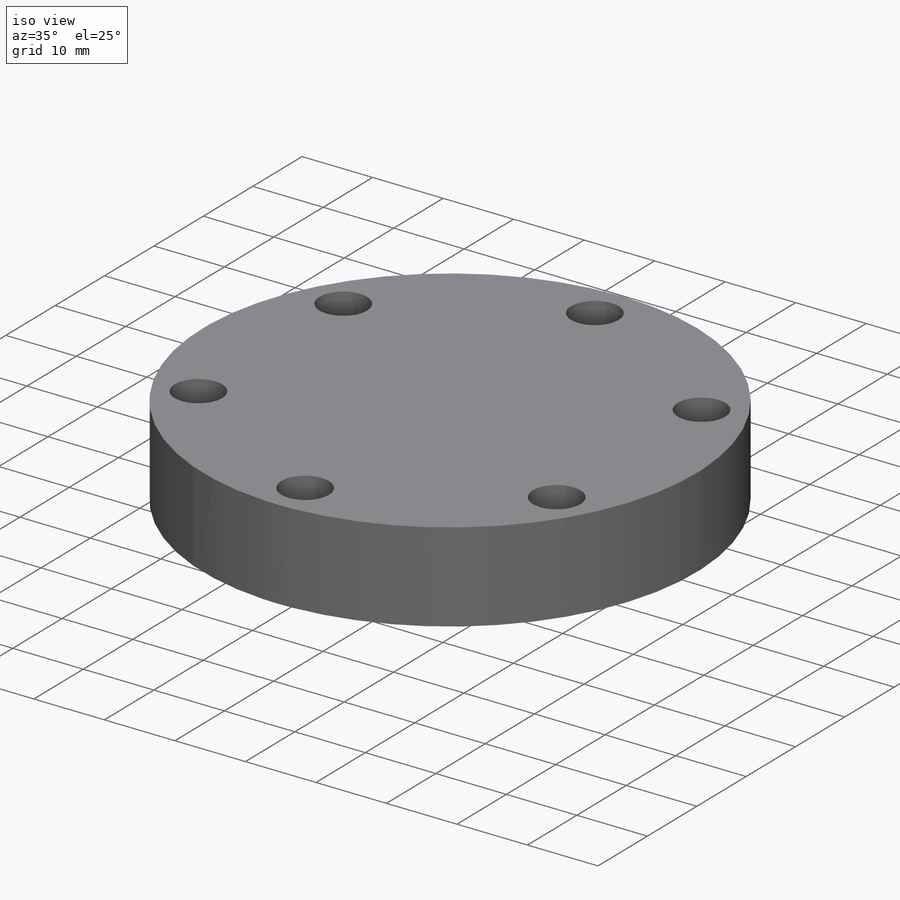
[diagram: iso view]
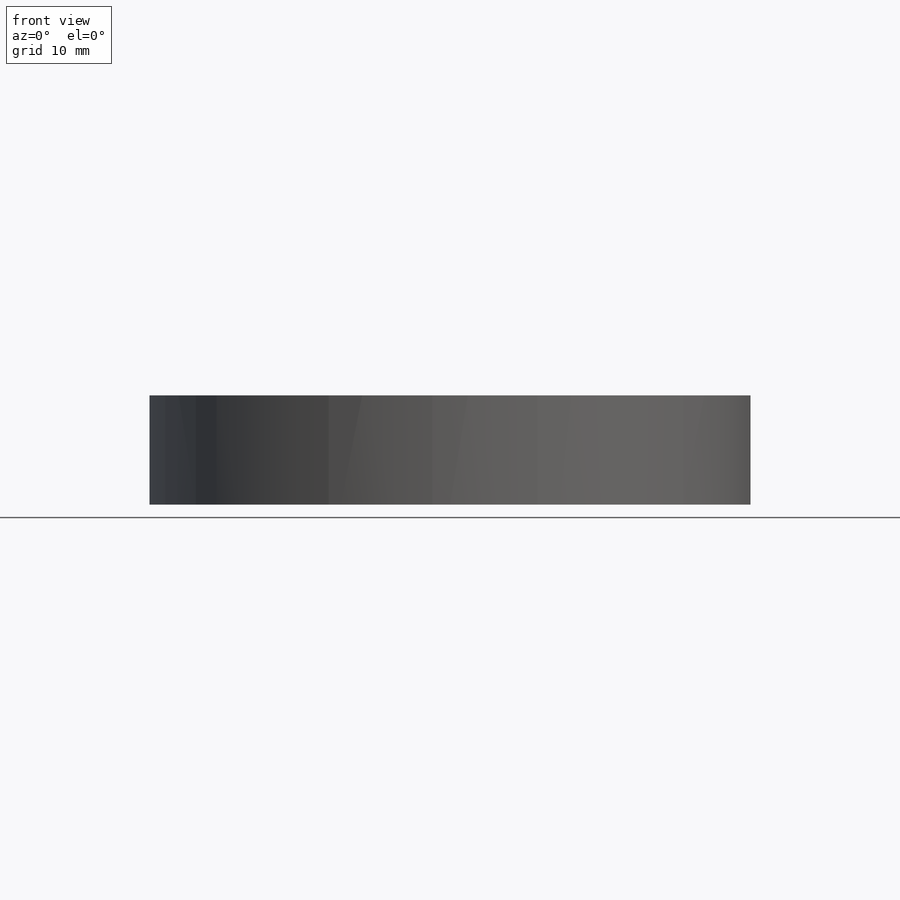
[diagram: front view]
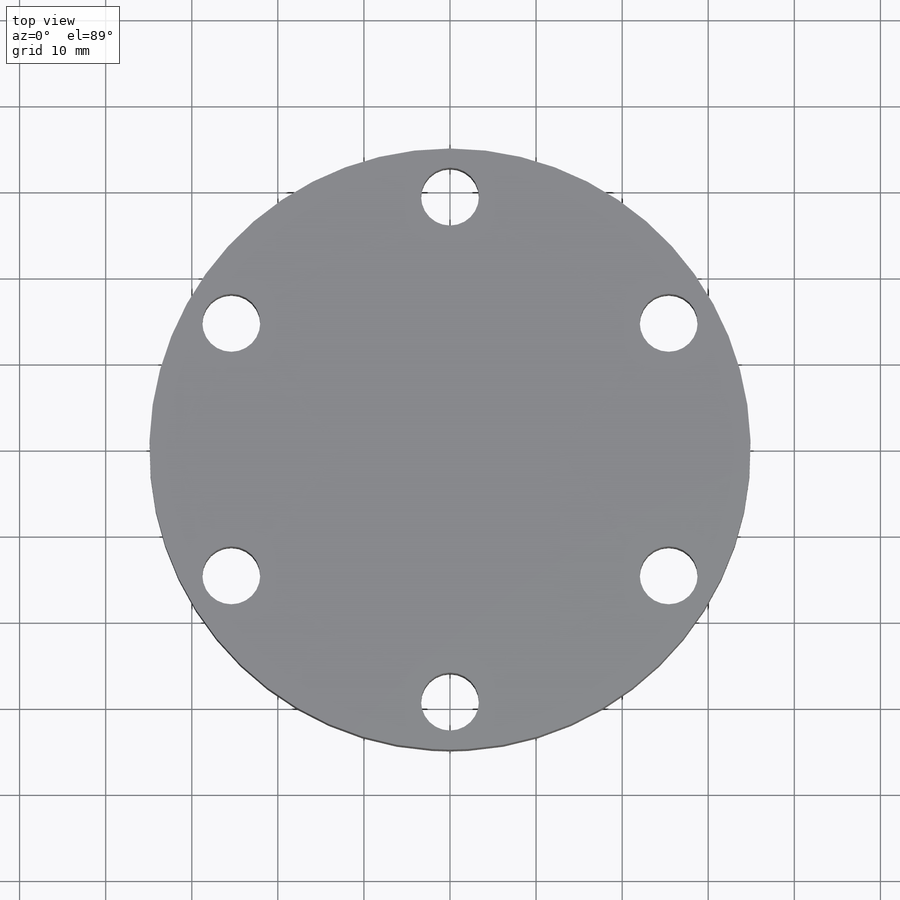
[diagram: top view]
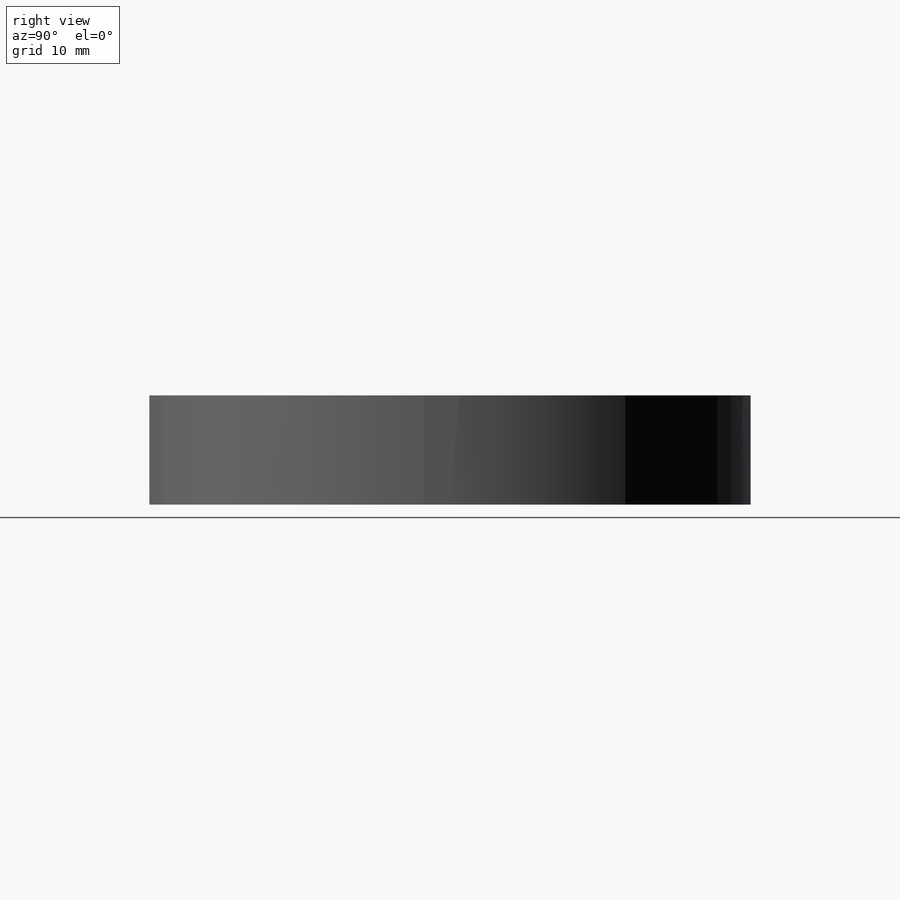
[diagram: right view]
SOLIDWORKS PART (.sldprt)
format: sldprt  version: not decoded by parser v0  size: 110,080 bytes
history: native  units: mm
features: sketch x5, extrude x2, cut_extrude x2, material x1, pattern_circular x1 (+17 scaffold rows collapsed)
feature tree (28):
  scaffold x17  (default folders/planes/origin — collapsed)
  material  "Material <not specified>"
  sketch  "Sketch1"  dims[D1=69.85mm]
  extrude  "Extrude1"  Depth=12.7mm
  sketch  "Sketch2"  dims[D1=34.798mm]
  cut_extrude  "Cut-Extrude1"  [1 undecoded]
  sketch  "Sketch3"  dims[D1=6.731mm D2=29.337mm]
  cut_extrude  "Cut-Extrude2"  Depth=12.7mm
  pattern_circular  "CirPattern1"  Count=6 Angle=360deg
  sketch  "Sketch4"
  sketch  "Sketch5"  dims[D1=6.35mm D2=12.7mm]
  extrude  "Extrude2"  Depth=101.6mm
decode coverage: 8 of 10 modeling features carry decoded parameters
note: 1 parameter value undecoded
note: suppression state not decoded; provenance and decode notes live in map.json
